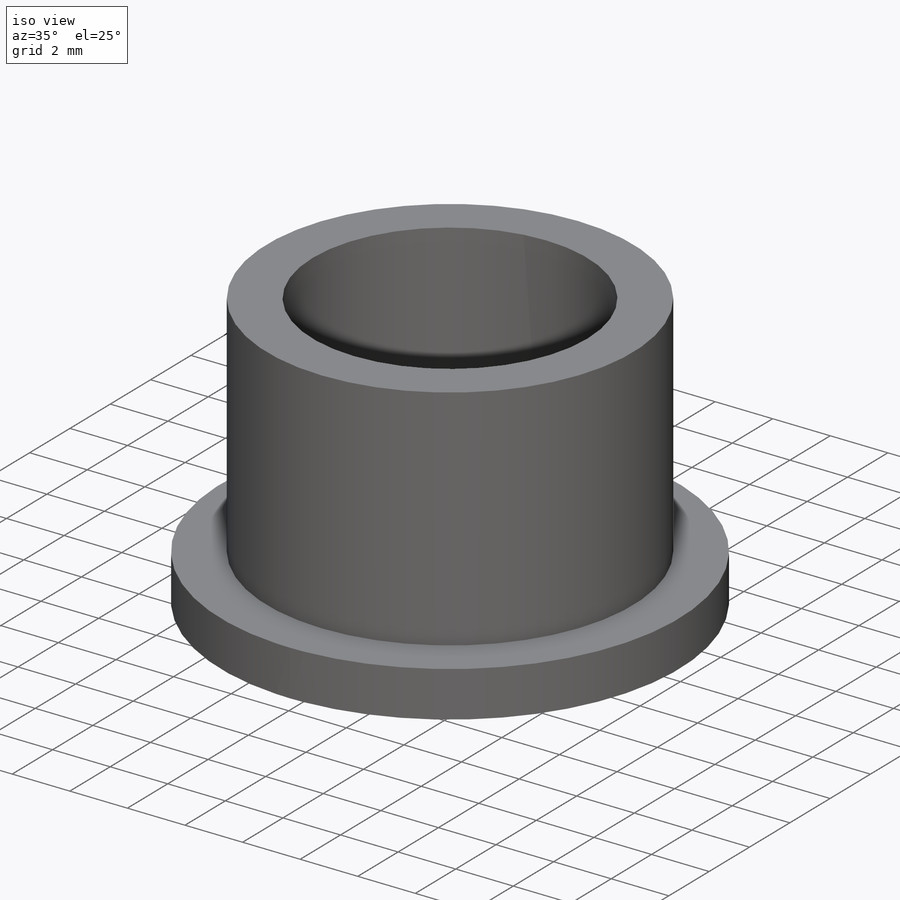
[diagram: iso view]
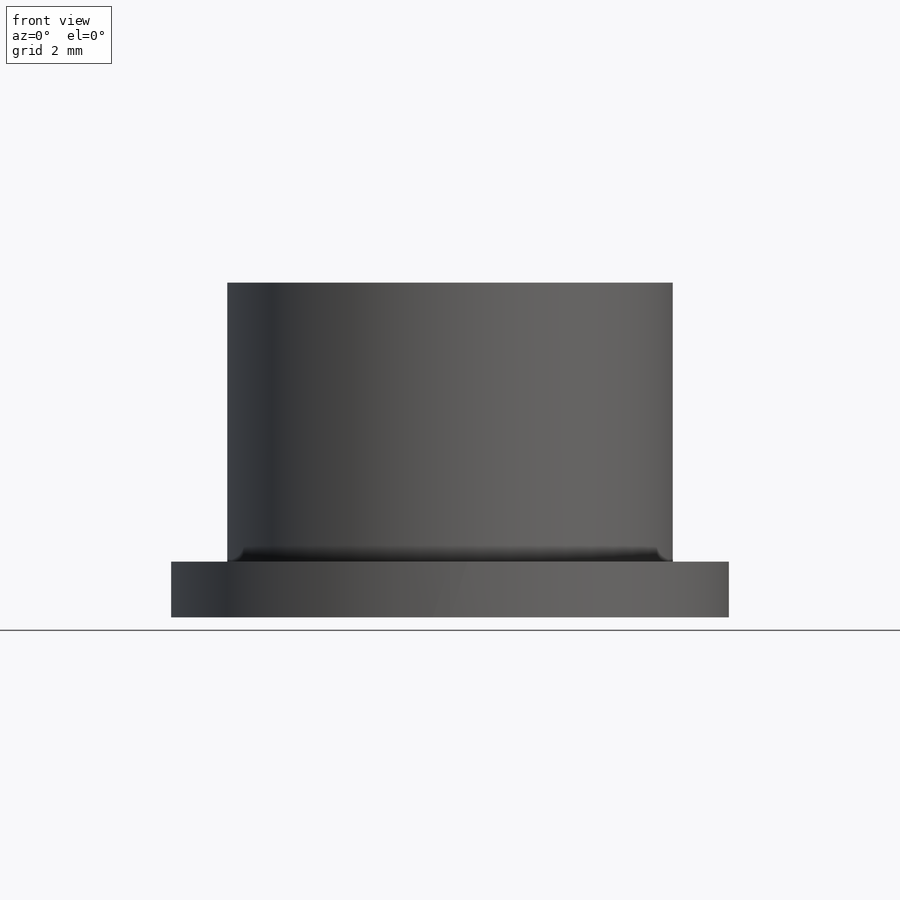
[diagram: front view]
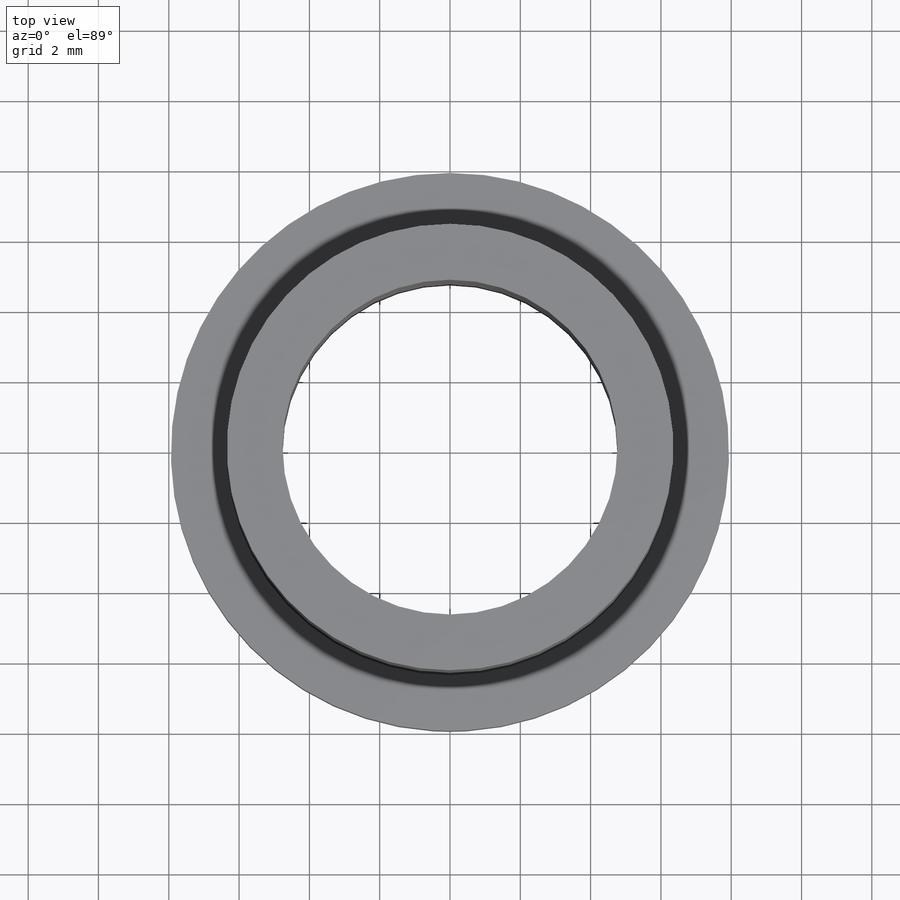
[diagram: top view]
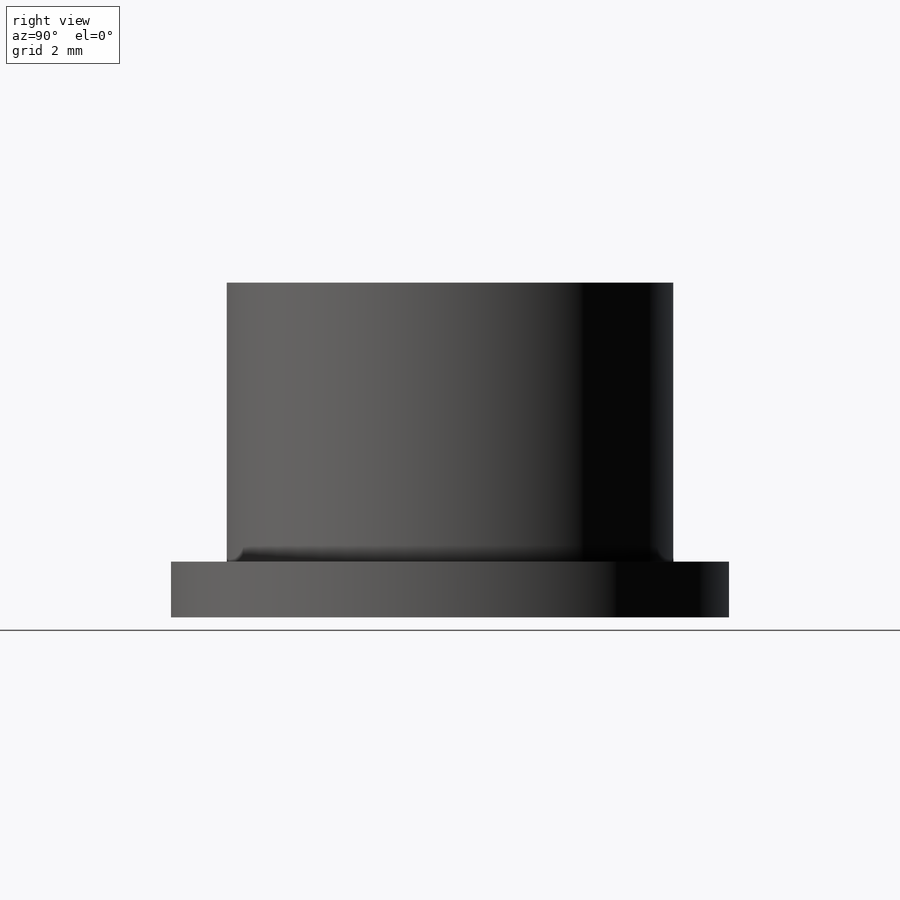
[diagram: right view]
SOLIDWORKS PART (.sldprt)
format: sldprt  version: not decoded by parser v0  size: 139,264 bytes
history: native  units: mm
features: sketch x3, extrude x2, material x1, cut_extrude x1 (+13 scaffold rows collapsed)
feature tree (20):
  scaffold x13  (default folders/planes/origin — collapsed)
  material  "Material <not specified>"
  sketch  "shaft"  dims[D1=~7.556452mm]
  sketch  "Flange"  dims[D1=~9.752241mm]
  sketch  "tube"  dims[D1=~6.346124mm]
  extrude  "Boss-Extrude1"  Depth=9.525mm
  extrude  "Boss-Extrude2"  Depth=1.5875mm
  cut_extrude  "Cut-Extrude1"  Depth=9.5875mm
decode coverage: 6 of 6 modeling features carry decoded parameters
note: ~ marks probable driven/reference dimensions
note: suppression state not decoded; provenance and decode notes live in map.json
